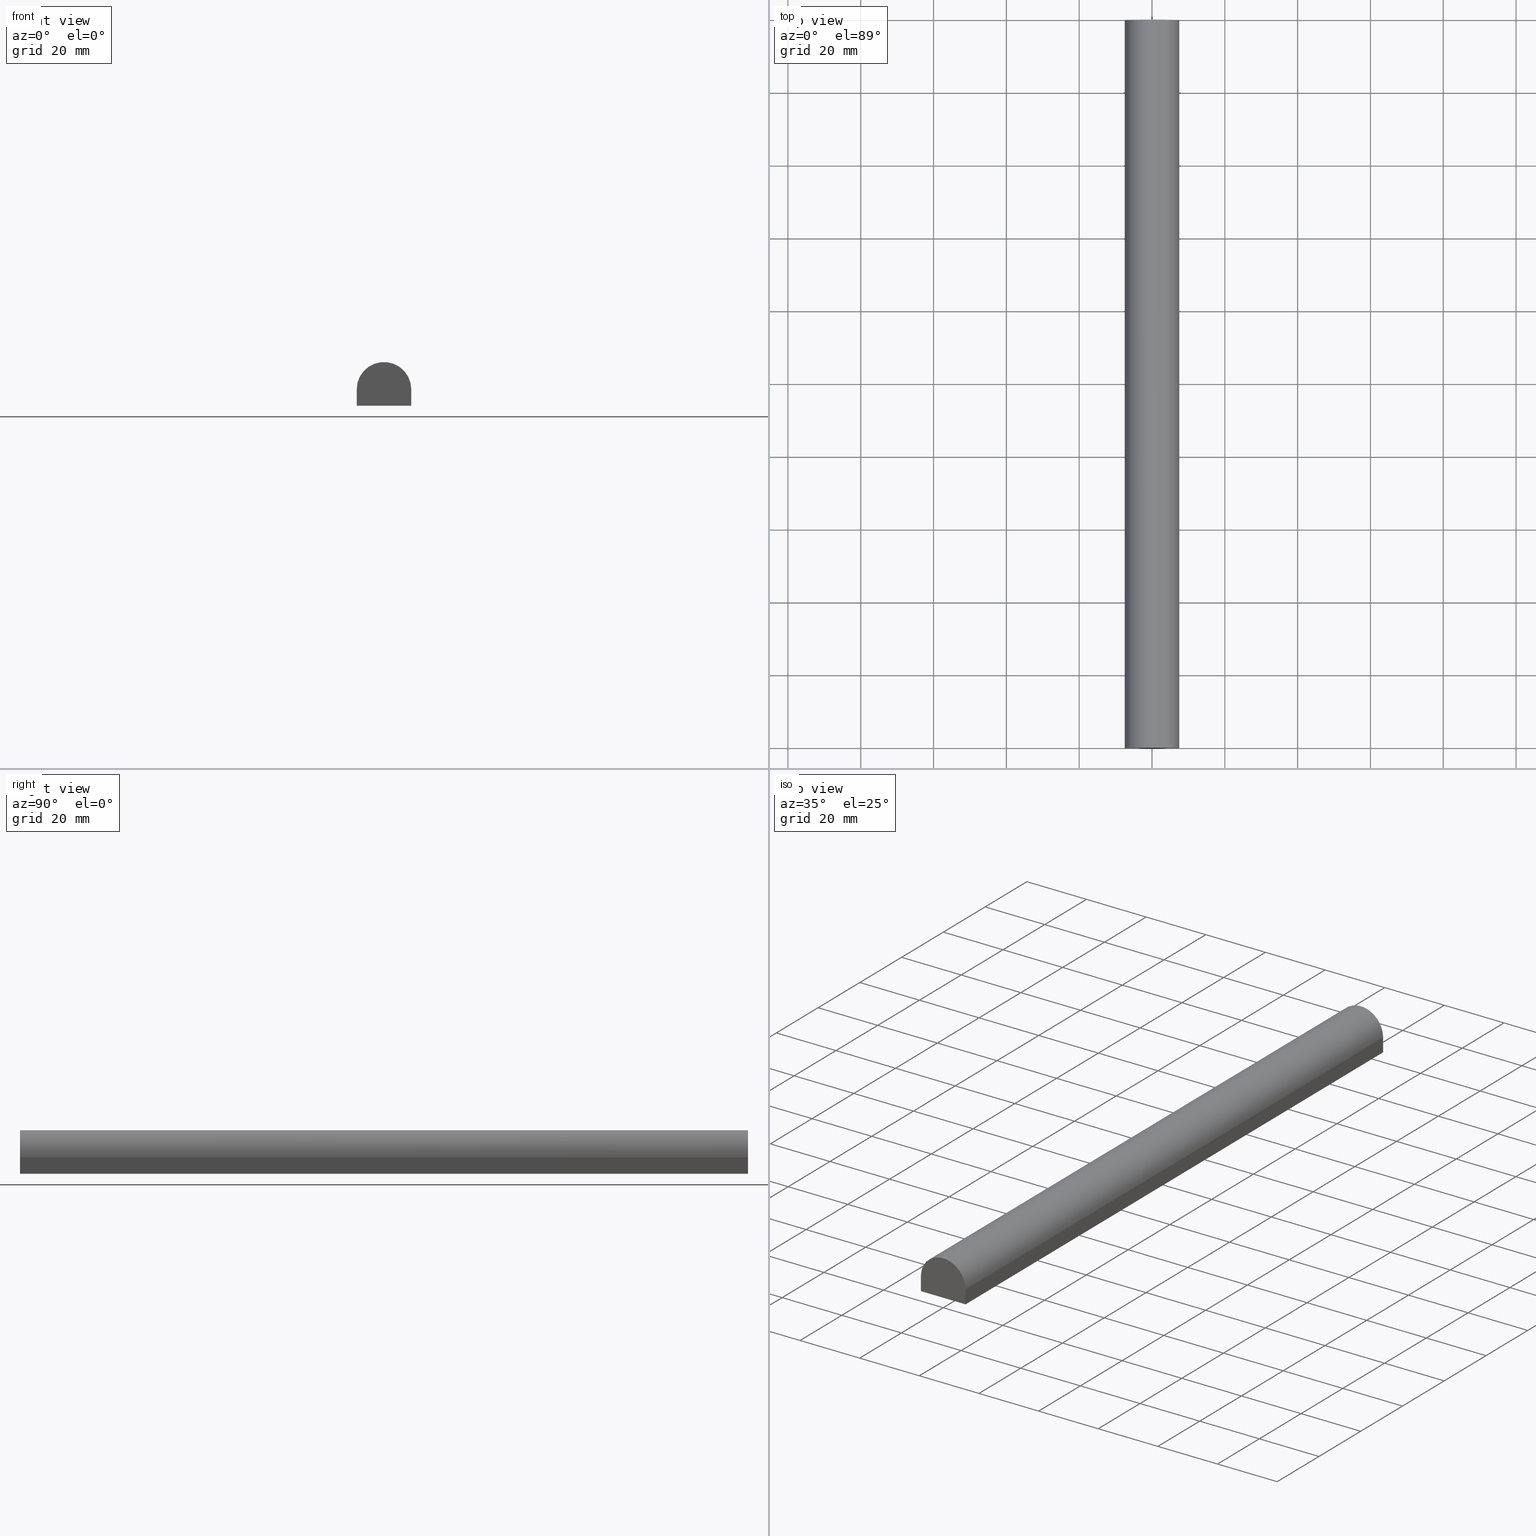
[diagram: canonical four-view strip — front | top / right | iso, engineering-drawing reading convention]
A machine part, canonical four-view strip (front | top / right | iso — engineering-drawing reading convention). The complete STEP part file that produces these views, byte-faithful:
ISO-10303-21;
HEADER;
FILE_DESCRIPTION (( 'STEP AP214' ),
    '1' );
FILE_NAME ('TM_341W_8.STEP',
    '2016-05-10T04:22:17',
    ( '' ),
    ( '' ),
    'SwSTEP 2.0',
    'SolidWorks 2015',
    '' );
FILE_SCHEMA (( 'AUTOMOTIVE_DESIGN' ));
ENDSEC;

DATA;
#1 = FILL_AREA_STYLE ('',( #63 ) ) ;
#2 = PRODUCT_RELATED_PRODUCT_CATEGORY ( 'part', '', ( #24 ) ) ;
#3 = SURFACE_STYLE_USAGE ( .BOTH. , #86 ) ;
#4 = CIRCLE ( 'NONE', #96, 7.500000000000000000 ) ;
#5 = DIRECTION ( 'NONE',  ( 0.0000000000000000000, 0.0000000000000000000, -1.000000000000000000 ) ) ;
#6 = LINE ( 'NONE', #87, #145 ) ;
#7 = CARTESIAN_POINT ( 'NONE',  ( 7.500000000000000000, 0.0000000000000000000, 0.0000000000000000000 ) ) ;
#8 =( NAMED_UNIT ( * ) SI_UNIT ( $, .STERADIAN. ) SOLID_ANGLE_UNIT ( ) );
#9 = CARTESIAN_POINT ( 'NONE',  ( -7.500000000000000000, 1000.000000000000000, -6.000000000000000000 ) ) ;
#10 = EDGE_CURVE ( 'NONE', #104, #49, #4, .T. ) ;
#11 = ORIENTED_EDGE ( 'NONE', *, *, #17, .F. ) ;
#12 = ORIENTED_EDGE ( 'NONE', *, *, #233, .F. ) ;
#13 = UNCERTAINTY_MEASURE_WITH_UNIT (LENGTH_MEASURE( 1.000000000000000100E-005 ), #153, 'distance_accuracy_value', 'NONE');
#14 = DIRECTION ( 'NONE',  ( 0.0000000000000000000, 0.0000000000000000000, 1.000000000000000000 ) ) ;
#15 = ORIENTED_EDGE ( 'NONE', *, *, #83, .T. ) ;
#16 = MECHANICAL_DESIGN_GEOMETRIC_PRESENTATION_REPRESENTATION (  '', ( #106 ), #68 ) ;
#17 = EDGE_CURVE ( 'NONE', #61, #66, #6, .T. ) ;
#18 = AXIS2_PLACEMENT_3D ( 'NONE', #211, #108, #201 ) ;
#19 = CARTESIAN_POINT ( 'NONE',  ( 0.0000000000000000000, 1000.000000000000000, -1.500000000000000000 ) ) ;
#20 = CARTESIAN_POINT ( 'NONE',  ( 7.500000000000000000, 0.0000000000000000000, -6.000000000000000000 ) ) ;
#21 = DIRECTION ( 'NONE',  ( -0.0000000000000000000, -0.0000000000000000000, 1.000000000000000000 ) ) ;
#22 = DIRECTION ( 'NONE',  ( 0.0000000000000000000, 0.0000000000000000000, 1.000000000000000000 ) ) ;
#23 = ORIENTED_EDGE ( 'NONE', *, *, #52, .T. ) ;
#24 = PRODUCT ( 'rubber foam', 'rubber foam', '', ( #193 ) ) ;
#25 = CARTESIAN_POINT ( 'NONE',  ( 0.0000000000000000000, 0.0000000000000000000, 0.0000000000000000000 ) ) ;
#26 = SURFACE_STYLE_USAGE ( .BOTH. , #46 ) ;
#27 = PRODUCT_DEFINITION_CONTEXT ( 'detailed design', #189, 'design' ) ;
#28 = DIRECTION ( 'NONE',  ( -1.000000000000000000, 0.0000000000000000000, 0.0000000000000000000 ) ) ;
#29 = SHAPE_DEFINITION_REPRESENTATION ( #134, #144 ) ;
#30 = LINE ( 'NONE', #238, #90 ) ;
#31 = ORIENTED_EDGE ( 'NONE', *, *, #40, .T. ) ;
#32 = PRODUCT_DEFINITION ( 'UNKNOWN', '', #225, #27 ) ;
#33 = EDGE_CURVE ( 'NONE', #209, #179, #194, .T. ) ;
#34 = ADVANCED_FACE ( 'NONE', ( #97 ), #73, .T. ) ;
#35 = AXIS2_PLACEMENT_3D ( 'NONE', #115, #76, #59 ) ;
#36 = PRODUCT_DEFINITION_FORMATION_WITH_SPECIFIED_SOURCE ( 'ANY', '', #175, .NOT_KNOWN. ) ;
#37 = LINE ( 'NONE', #7, #120 ) ;
#38 = ORIENTED_EDGE ( 'NONE', *, *, #233, .T. ) ;
#39 = FACE_OUTER_BOUND ( 'NONE', #202, .T. ) ;
#40 = EDGE_CURVE ( 'NONE', #154, #61, #188, .T. ) ;
#41 = VECTOR ( 'NONE', #172, 1000.000000000000000 ) ;
#42 = CARTESIAN_POINT ( 'NONE',  ( 0.0000000000000000000, 200.0000000000000000, 0.0000000000000000000 ) ) ;
#43 =( NAMED_UNIT ( * ) SI_UNIT ( $, .STERADIAN. ) SOLID_ANGLE_UNIT ( ) );
#44 = APPLICATION_CONTEXT ( 'automotive_design' ) ;
#45 = UNCERTAINTY_MEASURE_WITH_UNIT (LENGTH_MEASURE( 1.000000000000000100E-005 ), #150, 'distance_accuracy_value', 'NONE');
#46 = SURFACE_SIDE_STYLE ('',( #216 ) ) ;
#47 = ORIENTED_EDGE ( 'NONE', *, *, #10, .T. ) ;
#48 = FACE_OUTER_BOUND ( 'NONE', #141, .T. ) ;
#49 = VERTEX_POINT ( 'NONE', #157 ) ;
#50 = LINE ( 'NONE', #58, #232 ) ;
#51 = APPLICATION_CONTEXT ( 'automotive_design' ) ;
#52 = EDGE_CURVE ( 'NONE', #49, #209, #50, .T. ) ;
#53 = VECTOR ( 'NONE', #105, 1000.000000000000000 ) ;
#54 = UNCERTAINTY_MEASURE_WITH_UNIT (LENGTH_MEASURE( 1.000000000000000100E-005 ), #206, 'distance_accuracy_value', 'NONE');
#55 =( GEOMETRIC_REPRESENTATION_CONTEXT ( 3 ) GLOBAL_UNCERTAINTY_ASSIGNED_CONTEXT ( ( #54 ) ) GLOBAL_UNIT_ASSIGNED_CONTEXT ( ( #206, #236, #43 ) ) REPRESENTATION_CONTEXT ( 'NONE', 'WORKASPACE' ) );
#56 = ORIENTED_EDGE ( 'NONE', *, *, #83, .F. ) ;
#57 = VECTOR ( 'NONE', #117, 1000.000000000000000 ) ;
#58 = CARTESIAN_POINT ( 'NONE',  ( -7.500000000000000000, 1000.000000000000000, -1.500000000000000000 ) ) ;
#59 = DIRECTION ( 'NONE',  ( 1.000000000000000000, 0.0000000000000000000, 0.0000000000000000000 ) ) ;
#60 = DIRECTION ( 'NONE',  ( 0.0000000000000000000, 0.0000000000000000000, 1.000000000000000000 ) ) ;
#61 = VERTEX_POINT ( 'NONE', #235 ) ;
#62 = CARTESIAN_POINT ( 'NONE',  ( -7.500000000000000000, 0.0000000000000000000, -6.000000000000000000 ) ) ;
#63 = FILL_AREA_STYLE_COLOUR ( '', #119 ) ;
#64 = ORIENTED_EDGE ( 'NONE', *, *, #40, .F. ) ;
#65 = CARTESIAN_POINT ( 'NONE',  ( -7.500000000000000000, 200.0000000000000000, 0.0000000000000000000 ) ) ;
#66 = VERTEX_POINT ( 'NONE', #20 ) ;
#67 = ORIENTED_EDGE ( 'NONE', *, *, #52, .F. ) ;
#68 =( GEOMETRIC_REPRESENTATION_CONTEXT ( 3 ) GLOBAL_UNCERTAINTY_ASSIGNED_CONTEXT ( ( #45 ) ) GLOBAL_UNIT_ASSIGNED_CONTEXT ( ( #150, #167, #8 ) ) REPRESENTATION_CONTEXT ( 'NONE', 'WORKASPACE' ) );
#69 = LINE ( 'NONE', #114, #41 ) ;
#70 = ORIENTED_EDGE ( 'NONE', *, *, #208, .F. ) ;
#71 = AXIS2_PLACEMENT_3D ( 'NONE', #161, #89, #109 ) ;
#72 =( GEOMETRIC_REPRESENTATION_CONTEXT ( 3 ) GLOBAL_UNCERTAINTY_ASSIGNED_CONTEXT ( ( #162 ) ) GLOBAL_UNIT_ASSIGNED_CONTEXT ( ( #204, #80, #75 ) ) REPRESENTATION_CONTEXT ( 'NONE', 'WORKASPACE' ) );
#73 = PLANE ( 'NONE',  #131 ) ;
#74 = CARTESIAN_POINT ( 'NONE',  ( 0.0000000000000000000, 200.0000000000000000, -1.500000000000000000 ) ) ;
#75 =( NAMED_UNIT ( * ) SI_UNIT ( $, .STERADIAN. ) SOLID_ANGLE_UNIT ( ) );
#76 = DIRECTION ( 'NONE',  ( 0.0000000000000000000, 0.0000000000000000000, 1.000000000000000000 ) ) ;
#77 = EDGE_LOOP ( 'NONE', ( #112, #64, #56, #121 ) ) ;
#78 = APPLICATION_PROTOCOL_DEFINITION ( 'draft international standard', 'automotive_design', 1998, #189 ) ;
#79 = CARTESIAN_POINT ( 'NONE',  ( -7.500000000000000000, 1000.000000000000000, -6.000000000000000000 ) ) ;
#80 =( NAMED_UNIT ( * ) PLANE_ANGLE_UNIT ( ) SI_UNIT ( $, .RADIAN. ) );
#81 = ORIENTED_EDGE ( 'NONE', *, *, #181, .F. ) ;
#82 = VECTOR ( 'NONE', #88, 1000.000000000000000 ) ;
#83 = EDGE_CURVE ( 'NONE', #49, #154, #142, .T. ) ;
#84 = ORIENTED_EDGE ( 'NONE', *, *, #33, .T. ) ;
#85 = LINE ( 'NONE', #93, #137 ) ;
#86 = SURFACE_SIDE_STYLE ('',( #128 ) ) ;
#87 = CARTESIAN_POINT ( 'NONE',  ( 7.500000000000000000, 1000.000000000000000, -6.000000000000000000 ) ) ;
#88 = DIRECTION ( 'NONE',  ( 0.0000000000000000000, -1.000000000000000000, 0.0000000000000000000 ) ) ;
#89 = DIRECTION ( 'NONE',  ( 0.0000000000000000000, 0.0000000000000000000, 1.000000000000000000 ) ) ;
#90 = VECTOR ( 'NONE', #166, 1000.000000000000000 ) ;
#91 = FACE_OUTER_BOUND ( 'NONE', #136, .T. ) ;
#92 = CARTESIAN_POINT ( 'NONE',  ( -7.500000000000000000, 200.0000000000000000, -6.000000000000000000 ) ) ;
#93 = CARTESIAN_POINT ( 'NONE',  ( 7.500000000000000000, 1000.000000000000000, -1.500000000000000000 ) ) ;
#94 = AXIS2_PLACEMENT_3D ( 'NONE', #25, #133, #111 ) ;
#95 = PLANE ( 'NONE',  #18 ) ;
#96 = AXIS2_PLACEMENT_3D ( 'NONE', #74, #125, #212 ) ;
#97 = FACE_OUTER_BOUND ( 'NONE', #101, .T. ) ;
#98 = CARTESIAN_POINT ( 'NONE',  ( 7.500000000000000000, 0.0000000000000000000, -1.500000000000000000 ) ) ;
#99 = PRODUCT_RELATED_PRODUCT_CATEGORY ( 'part', '', ( #175 ) ) ;
#100 = DIRECTION ( 'NONE',  ( 1.000000000000000000, 0.0000000000000000000, 0.0000000000000000000 ) ) ;
#101 = EDGE_LOOP ( 'NONE', ( #102, #67, #15, #170 ) ) ;
#102 = ORIENTED_EDGE ( 'NONE', *, *, #33, .F. ) ;
#103 = PRODUCT_DEFINITION_CONTEXT ( 'detailed design', #218, 'design' ) ;
#104 = VERTEX_POINT ( 'NONE', #148 ) ;
#105 = DIRECTION ( 'NONE',  ( -0.0000000000000000000, -0.0000000000000000000, -1.000000000000000000 ) ) ;
#106 = STYLED_ITEM ( 'NONE', ( #190 ), #205 ) ;
#107 = CARTESIAN_POINT ( 'NONE',  ( -7.500000000000000000, 0.0000000000000000000, 0.0000000000000000000 ) ) ;
#108 = DIRECTION ( 'NONE',  ( -0.0000000000000000000, 1.000000000000000000, 0.0000000000000000000 ) ) ;
#109 = DIRECTION ( 'NONE',  ( 1.000000000000000000, 0.0000000000000000000, 0.0000000000000000000 ) ) ;
#110 = APPLICATION_PROTOCOL_DEFINITION ( 'draft international standard', 'automotive_design', 1998, #51 ) ;
#111 = DIRECTION ( 'NONE',  ( 1.000000000000000000, 0.0000000000000000000, 0.0000000000000000000 ) ) ;
#112 = ORIENTED_EDGE ( 'NONE', *, *, #229, .F. ) ;
#113 = CARTESIAN_POINT ( 'NONE',  ( 0.0000000000000000000, 0.0000000000000000000, 0.0000000000000000000 ) ) ;
#114 = CARTESIAN_POINT ( 'NONE',  ( 0.0000000000000000000, 0.0000000000000000000, -6.000000000000000000 ) ) ;
#115 = CARTESIAN_POINT ( 'NONE',  ( 0.0000000000000000000, 0.0000000000000000000, 0.0000000000000000000 ) ) ;
#116 = ORIENTED_EDGE ( 'NONE', *, *, #146, .F. ) ;
#117 = DIRECTION ( 'NONE',  ( -0.0000000000000000000, -0.0000000000000000000, -1.000000000000000000 ) ) ;
#118 = ADVANCED_FACE ( 'NONE', ( #186 ), #135, .T. ) ;
#119 = COLOUR_RGB ( '',0.7921568627450980000, 0.8196078431372548800, 0.9333333333333333500 ) ;
#120 = VECTOR ( 'NONE', #21, 1000.000000000000000 ) ;
#121 = ORIENTED_EDGE ( 'NONE', *, *, #10, .F. ) ;
#122 = AXIS2_PLACEMENT_3D ( 'NONE', #19, #226, #203 ) ;
#123 = CARTESIAN_POINT ( 'NONE',  ( -7.500000000000000000, 1000.000000000000000, -1.500000000000000000 ) ) ;
#124 = DIRECTION ( 'NONE',  ( 0.0000000000000000000, 0.0000000000000000000, -1.000000000000000000 ) ) ;
#125 = DIRECTION ( 'NONE',  ( -0.0000000000000000000, -1.000000000000000000, -0.0000000000000000000 ) ) ;
#126 = FILL_AREA_STYLE ('',( #132 ) ) ;
#127 = APPLICATION_PROTOCOL_DEFINITION ( 'draft international standard', 'automotive_design', 1998, #44 ) ;
#128 = SURFACE_STYLE_FILL_AREA ( #126 ) ;
#129 = DIRECTION ( 'NONE',  ( 1.000000000000000000, 0.0000000000000000000, 0.0000000000000000000 ) ) ;
#130 = PLANE ( 'NONE',  #173 ) ;
#131 = AXIS2_PLACEMENT_3D ( 'NONE', #123, #182, #14 ) ;
#132 = FILL_AREA_STYLE_COLOUR ( '', #177 ) ;
#133 = DIRECTION ( 'NONE',  ( 0.0000000000000000000, 0.0000000000000000000, 1.000000000000000000 ) ) ;
#134 = PRODUCT_DEFINITION_SHAPE ( 'NONE', 'NONE',  #174 ) ;
#135 = PLANE ( 'NONE',  #195 ) ;
#136 = EDGE_LOOP ( 'NONE', ( #38, #196, #84, #149 ) ) ;
#137 = VECTOR ( 'NONE', #213, 1000.000000000000000 ) ;
#138 = CARTESIAN_POINT ( 'NONE',  ( -7.500000000000000000, 0.0000000000000000000, -1.500000000000000000 ) ) ;
#139 = CYLINDRICAL_SURFACE ( 'NONE', #122, 7.500000000000000000 ) ;
#140 = STYLED_ITEM ( 'NONE', ( #171 ), #199 ) ;
#141 = EDGE_LOOP ( 'NONE', ( #12, #11, #223, #185 ) ) ;
#142 = LINE ( 'NONE', #65, #57 ) ;
#143 = CARTESIAN_POINT ( 'NONE',  ( 0.0000000000000000000, 200.0000000000000000, -6.000000000000000000 ) ) ;
#144 = SHAPE_REPRESENTATION ( 'TM_341W_8', ( #94, #35 ), #55 ) ;
#145 = VECTOR ( 'NONE', #158, 1000.000000000000000 ) ;
#146 = EDGE_CURVE ( 'NONE', #104, #231, #85, .T. ) ;
#147 = DIRECTION ( 'NONE',  ( 1.000000000000000000, -0.0000000000000000000, -0.0000000000000000000 ) ) ;
#148 = CARTESIAN_POINT ( 'NONE',  ( 7.500000000000000000, 200.0000000000000000, -1.500000000000000000 ) ) ;
#149 = ORIENTED_EDGE ( 'NONE', *, *, #208, .T. ) ;
#150 =( LENGTH_UNIT ( ) NAMED_UNIT ( * ) SI_UNIT ( .MILLI., .METRE. ) );
#151 = ADVANCED_FACE ( 'NONE', ( #48 ), #169, .T. ) ;
#152 =( NAMED_UNIT ( * ) PLANE_ANGLE_UNIT ( ) SI_UNIT ( $, .RADIAN. ) );
#153 =( LENGTH_UNIT ( ) NAMED_UNIT ( * ) SI_UNIT ( .MILLI., .METRE. ) );
#154 = VERTEX_POINT ( 'NONE', #92 ) ;
#155 = EDGE_CURVE ( 'NONE', #154, #179, #180, .T. ) ;
#156 = ORIENTED_EDGE ( 'NONE', *, *, #155, .F. ) ;
#157 = CARTESIAN_POINT ( 'NONE',  ( -7.500000000000000000, 200.0000000000000000, -1.500000000000000000 ) ) ;
#158 = DIRECTION ( 'NONE',  ( 0.0000000000000000000, -1.000000000000000000, 0.0000000000000000000 ) ) ;
#159 = DIRECTION ( 'NONE',  ( 1.000000000000000000, 0.0000000000000000000, 0.0000000000000000000 ) ) ;
#160 = ADVANCED_FACE ( 'NONE', ( #91 ), #95, .F. ) ;
#161 = CARTESIAN_POINT ( 'NONE',  ( 0.0000000000000000000, 0.0000000000000000000, 0.0000000000000000000 ) ) ;
#162 = UNCERTAINTY_MEASURE_WITH_UNIT (LENGTH_MEASURE( 1.000000000000000100E-005 ), #204, 'distance_accuracy_value', 'NONE');
#163 = CARTESIAN_POINT ( 'NONE',  ( 0.0000000000000000000, 0.0000000000000000000, -1.500000000000000000 ) ) ;
#164 = ADVANCED_FACE ( 'NONE', ( #39 ), #139, .T. ) ;
#165 = EDGE_LOOP ( 'NONE', ( #70, #156, #31, #207 ) ) ;
#166 = DIRECTION ( 'NONE',  ( -0.0000000000000000000, -0.0000000000000000000, 1.000000000000000000 ) ) ;
#167 =( NAMED_UNIT ( * ) PLANE_ANGLE_UNIT ( ) SI_UNIT ( $, .RADIAN. ) );
#168 = DIRECTION ( 'NONE',  ( -0.0000000000000000000, 1.000000000000000000, 0.0000000000000000000 ) ) ;
#169 = PLANE ( 'NONE',  #217 ) ;
#170 = ORIENTED_EDGE ( 'NONE', *, *, #155, .T. ) ;
#171 = PRESENTATION_STYLE_ASSIGNMENT (( #3 ) ) ;
#172 = DIRECTION ( 'NONE',  ( 1.000000000000000000, -0.0000000000000000000, -0.0000000000000000000 ) ) ;
#173 = AXIS2_PLACEMENT_3D ( 'NONE', #79, #124, #28 ) ;
#174 = PRODUCT_DEFINITION ( 'UNKNOWN', '', #36, #103 ) ;
#175 = PRODUCT ( 'TM_341W_8', 'TM_341W_8', '', ( #183 ) ) ;
#176 = MECHANICAL_DESIGN_GEOMETRIC_PRESENTATION_REPRESENTATION (  '', ( #140 ), #72 ) ;
#177 = COLOUR_RGB ( '',0.7921568627450980000, 0.8196078431372548800, 0.9333333333333333500 ) ;
#178 = ADVANCED_FACE ( 'NONE', ( #224 ), #130, .T. ) ;
#179 = VERTEX_POINT ( 'NONE', #62 ) ;
#180 = LINE ( 'NONE', #9, #82 ) ;
#181 = EDGE_CURVE ( 'NONE', #231, #209, #215, .T. ) ;
#182 = DIRECTION ( 'NONE',  ( -1.000000000000000000, 0.0000000000000000000, 0.0000000000000000000 ) ) ;
#183 = PRODUCT_CONTEXT ( 'NONE', #44, 'mechanical' ) ;
#184 = SHAPE_REPRESENTATION_RELATIONSHIP ( 'NONE' , 'NONE' ,  #227, #205 ) ;
#185 = ORIENTED_EDGE ( 'NONE', *, *, #146, .T. ) ;
#186 = FACE_OUTER_BOUND ( 'NONE', #77, .T. ) ;
#187 = APPLICATION_PROTOCOL_DEFINITION ( 'draft international standard', 'automotive_design', 1998, #218 ) ;
#188 = LINE ( 'NONE', #143, #234 ) ;
#189 = APPLICATION_CONTEXT ( 'automotive_design' ) ;
#190 = PRESENTATION_STYLE_ASSIGNMENT (( #26 ) ) ;
#191 = SHAPE_DEFINITION_REPRESENTATION ( #230, #227 ) ;
#192 = DIRECTION ( 'NONE',  ( -0.0000000000000000000, -1.000000000000000000, -0.0000000000000000000 ) ) ;
#193 = PRODUCT_CONTEXT ( 'NONE', #51, 'mechanical' ) ;
#194 = LINE ( 'NONE', #107, #53 ) ;
#195 = AXIS2_PLACEMENT_3D ( 'NONE', #42, #168, #129 ) ;
#196 = ORIENTED_EDGE ( 'NONE', *, *, #181, .T. ) ;
#197 =( GEOMETRIC_REPRESENTATION_CONTEXT ( 3 ) GLOBAL_UNCERTAINTY_ASSIGNED_CONTEXT ( ( #13 ) ) GLOBAL_UNIT_ASSIGNED_CONTEXT ( ( #153, #152, #198 ) ) REPRESENTATION_CONTEXT ( 'NONE', 'WORKASPACE' ) );
#198 =( NAMED_UNIT ( * ) SI_UNIT ( $, .STERADIAN. ) SOLID_ANGLE_UNIT ( ) );
#199 = MANIFOLD_SOLID_BREP ( '���߰�1', #214 ) ;
#200 =( REPRESENTATION_RELATIONSHIP ('NONE','NONE', #144, #227 ) REPRESENTATION_RELATIONSHIP_WITH_TRANSFORMATION ( #237 )SHAPE_REPRESENTATION_RELATIONSHIP( ) );
#201 = DIRECTION ( 'NONE',  ( 1.000000000000000000, 0.0000000000000000000, 0.0000000000000000000 ) ) ;
#202 = EDGE_LOOP ( 'NONE', ( #81, #116, #47, #23 ) ) ;
#203 = DIRECTION ( 'NONE',  ( 0.0000000000000000000, 0.0000000000000000000, -1.000000000000000000 ) ) ;
#204 =( LENGTH_UNIT ( ) NAMED_UNIT ( * ) SI_UNIT ( .MILLI., .METRE. ) );
#205 = ADVANCED_BREP_SHAPE_REPRESENTATION ( '', ( #199, #210 ), #197 ) ;
#206 =( LENGTH_UNIT ( ) NAMED_UNIT ( * ) SI_UNIT ( .MILLI., .METRE. ) );
#207 = ORIENTED_EDGE ( 'NONE', *, *, #17, .T. ) ;
#208 = EDGE_CURVE ( 'NONE', #179, #66, #69, .T. ) ;
#209 = VERTEX_POINT ( 'NONE', #138 ) ;
#210 = AXIS2_PLACEMENT_3D ( 'NONE', #113, #22, #159 ) ;
#211 = CARTESIAN_POINT ( 'NONE',  ( 0.0000000000000000000, 0.0000000000000000000, 0.0000000000000000000 ) ) ;
#212 = DIRECTION ( 'NONE',  ( 0.0000000000000000000, 0.0000000000000000000, 1.000000000000000000 ) ) ;
#213 = DIRECTION ( 'NONE',  ( 0.0000000000000000000, -1.000000000000000000, 0.0000000000000000000 ) ) ;
#214 = CLOSED_SHELL ( 'NONE', ( #151, #164, #34, #178, #118, #160 ) ) ;
#215 = CIRCLE ( 'NONE', #222, 7.500000000000000000 ) ;
#216 = SURFACE_STYLE_FILL_AREA ( #1 ) ;
#217 = AXIS2_PLACEMENT_3D ( 'NONE', #221, #100, #5 ) ;
#218 = APPLICATION_CONTEXT ( 'automotive_design' ) ;
#219 = DIRECTION ( 'NONE',  ( 0.0000000000000000000, -1.000000000000000000, 0.0000000000000000000 ) ) ;
#220 = CONTEXT_DEPENDENT_SHAPE_REPRESENTATION ( #200, #239 ) ;
#221 = CARTESIAN_POINT ( 'NONE',  ( 7.500000000000000000, 1000.000000000000000, -6.000000000000000000 ) ) ;
#222 = AXIS2_PLACEMENT_3D ( 'NONE', #163, #192, #60 ) ;
#223 = ORIENTED_EDGE ( 'NONE', *, *, #229, .T. ) ;
#224 = FACE_OUTER_BOUND ( 'NONE', #165, .T. ) ;
#225 = PRODUCT_DEFINITION_FORMATION_WITH_SPECIFIED_SOURCE ( 'ANY', '', #24, .NOT_KNOWN. ) ;
#226 = DIRECTION ( 'NONE',  ( 0.0000000000000000000, -1.000000000000000000, 0.0000000000000000000 ) ) ;
#227 = SHAPE_REPRESENTATION ( 'rubber foam', ( #210 ), #197 ) ;
#228 = PRESENTATION_LAYER_ASSIGNMENT (  '', '', ( #106 ) ) ;
#229 = EDGE_CURVE ( 'NONE', #61, #104, #30, .T. ) ;
#230 = PRODUCT_DEFINITION_SHAPE ( 'NONE', 'NONE',  #32 ) ;
#231 = VERTEX_POINT ( 'NONE', #98 ) ;
#232 = VECTOR ( 'NONE', #219, 1000.000000000000000 ) ;
#233 = EDGE_CURVE ( 'NONE', #66, #231, #37, .T. ) ;
#234 = VECTOR ( 'NONE', #147, 1000.000000000000000 ) ;
#235 = CARTESIAN_POINT ( 'NONE',  ( 7.500000000000000000, 200.0000000000000000, -6.000000000000000000 ) ) ;
#236 =( NAMED_UNIT ( * ) PLANE_ANGLE_UNIT ( ) SI_UNIT ( $, .RADIAN. ) );
#237 = ITEM_DEFINED_TRANSFORMATION ( 'NONE', 'NONE', #35,  #210 ) ;
#238 = CARTESIAN_POINT ( 'NONE',  ( 7.500000000000000000, 200.0000000000000000, 0.0000000000000000000 ) ) ;
#239 = PRODUCT_DEFINITION_SHAPE ( 'NONE', 'NONE',  #241 ) ;
#240 = PRESENTATION_LAYER_ASSIGNMENT (  '', '', ( #140 ) ) ;
#241 = NEXT_ASSEMBLY_USAGE_OCCURRENCE ( 'NAUO1', ' ', ' ', #174, #32, $ ) ;
ENDSEC;
END-ISO-10303-21;
